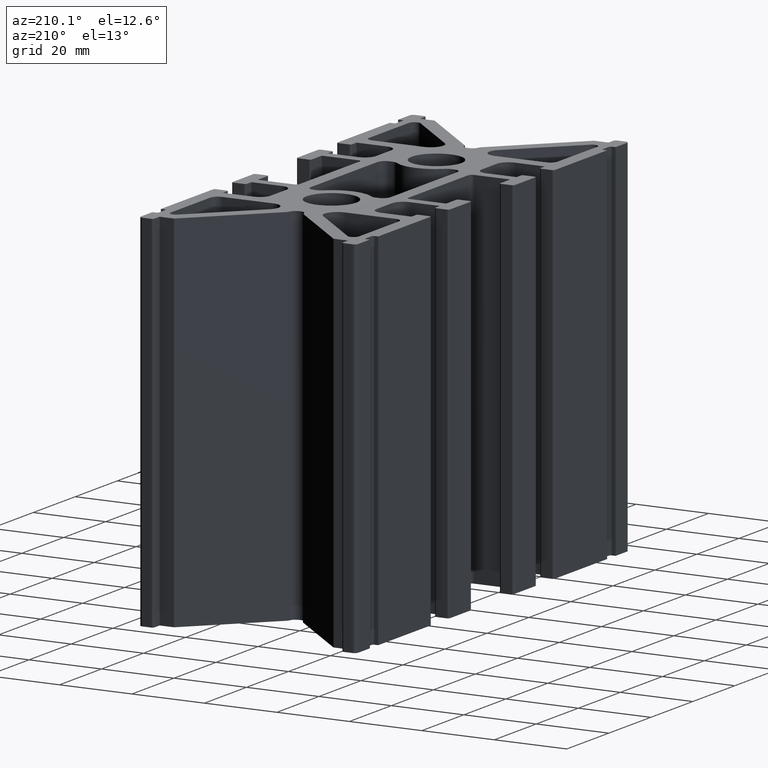
[diagram: clean part render]
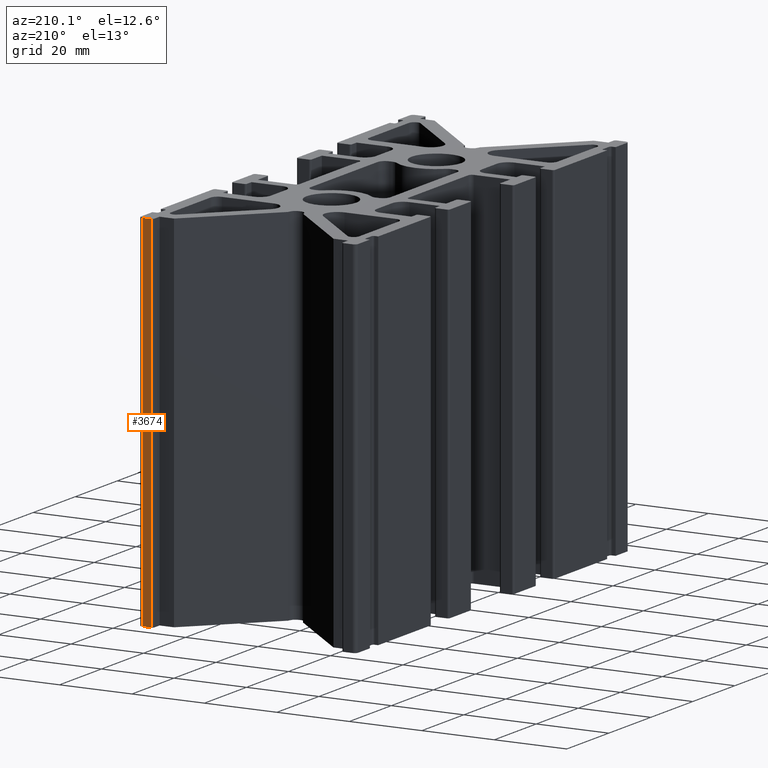
[diagram: same view with one face highlighted and labeled with its STEP entity id]
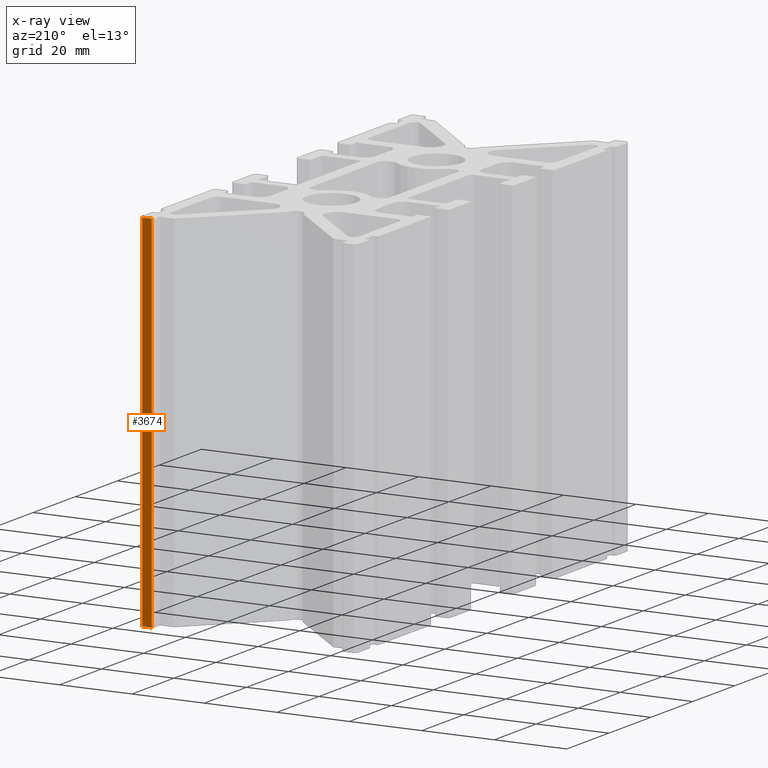
[diagram: x-ray of the same camera — body ghosted, the highlighted face saturated]
A machine part, auxiliary view. The second image highlights one B-rep face of the part: STEP entity #3674.
The next image is the same camera in x-ray: the body ghosted, the highlighted face saturated — about 0% of this face is hidden behind the body in this view.
In plain terms, the highlighted planar face has unit normal (0, 1, 0).
Its self-contained STEP definition (entity closure, byte-faithful):
#68=PLANE('',#3978);
#210=FACE_OUTER_BOUND('',#407,.T.);
#407=EDGE_LOOP('',(#2873,#2874,#2875,#2876));
#786=LINE('',#5547,#1182);
#901=LINE('',#5888,#1297);
#902=LINE('',#5891,#1298);
#903=LINE('',#5892,#1299);
#1182=VECTOR('',#4440,2.50000000000043);
#1297=VECTOR('',#4723,100.);
#1298=VECTOR('',#4726,2.50000000000043);
#1299=VECTOR('',#4727,100.);
#1596=VERTEX_POINT('',#5544);
#1597=VERTEX_POINT('',#5546);
#1739=VERTEX_POINT('',#5886);
#1740=VERTEX_POINT('',#5890);
#2008=EDGE_CURVE('',#1596,#1597,#786,.T.);
#2179=EDGE_CURVE('',#1596,#1739,#901,.T.);
#2180=EDGE_CURVE('',#1740,#1739,#902,.T.);
#2181=EDGE_CURVE('',#1597,#1740,#903,.T.);
#2873=ORIENTED_EDGE('',*,*,#2179,.T.);
#2874=ORIENTED_EDGE('',*,*,#2180,.F.);
#2875=ORIENTED_EDGE('',*,*,#2181,.F.);
#2876=ORIENTED_EDGE('',*,*,#2008,.F.);
#3674=ADVANCED_FACE('',(#210),#68,.T.);
#3978=AXIS2_PLACEMENT_3D('',#5889,#4724,#4725);
#4440=DIRECTION('',(1.,0.,0.));
#4723=DIRECTION('',(0.,0.,1.));
#4724=DIRECTION('center_axis',(0.,1.,0.));
#4725=DIRECTION('ref_axis',(-1.,0.,0.));
#4726=DIRECTION('',(-1.,0.,0.));
#4727=DIRECTION('',(0.,0.,1.));
#5544=CARTESIAN_POINT('',(26.4999999999959,64.9999999999972,-50.));
#5546=CARTESIAN_POINT('',(28.9999999999964,64.9999999999972,-50.));
#5547=CARTESIAN_POINT('',(28.9999999999964,64.9999999999972,-50.));
#5886=CARTESIAN_POINT('',(26.4999999999959,64.9999999999972,50.));
#5888=CARTESIAN_POINT('',(26.4999999999959,64.9999999999972,0.));
#5889=CARTESIAN_POINT('Origin',(28.9999999999964,64.9999999999972,0.));
#5890=CARTESIAN_POINT('',(28.9999999999964,64.9999999999972,50.));
#5891=CARTESIAN_POINT('',(28.9999999999964,64.9999999999972,50.));
#5892=CARTESIAN_POINT('',(28.9999999999964,64.9999999999972,0.));